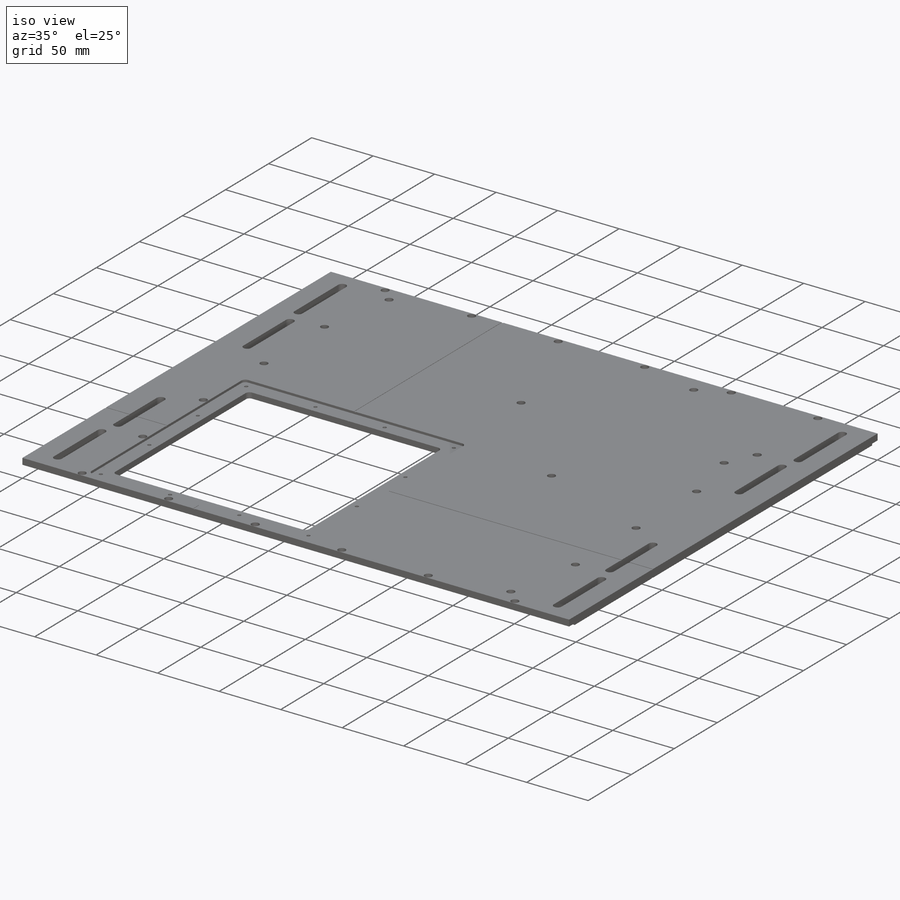
[diagram: iso view]
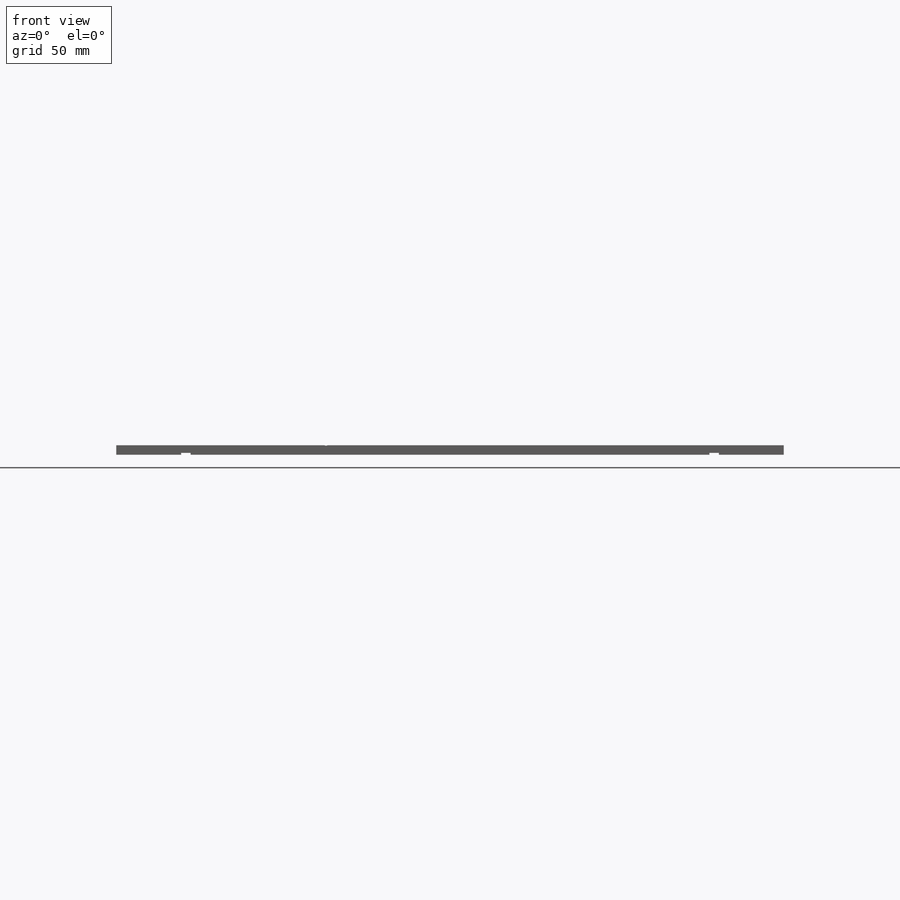
[diagram: front view]
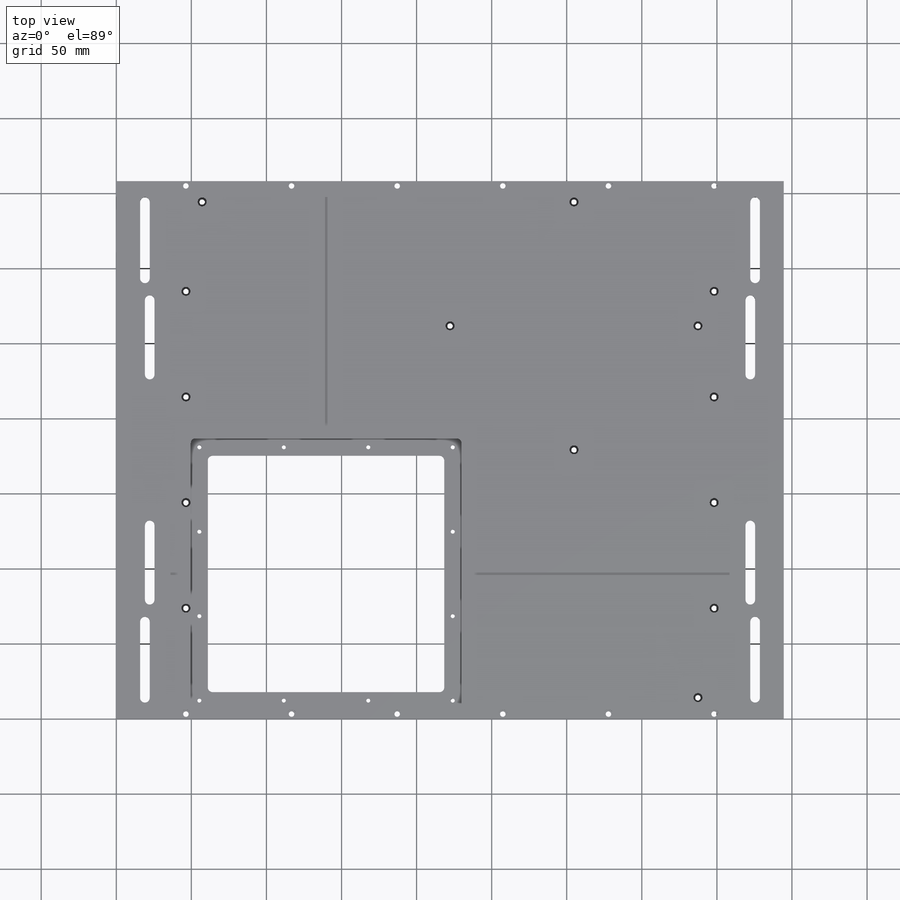
[diagram: top view]
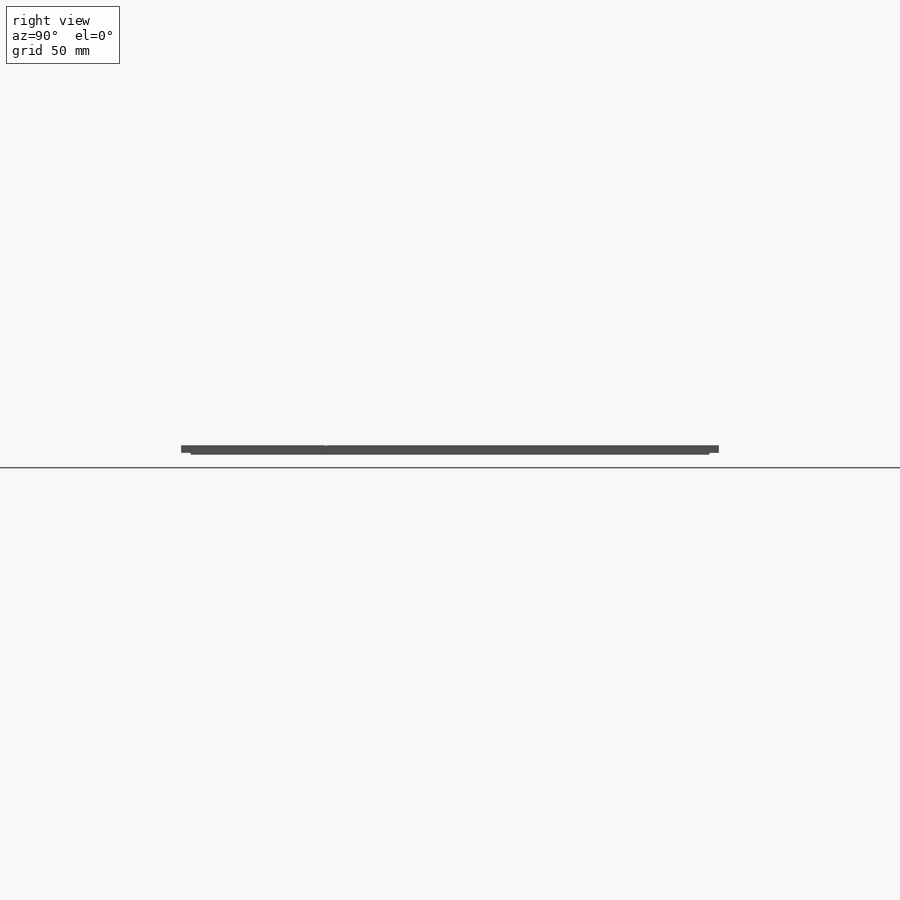
[diagram: right view]
SOLIDWORKS PART (.sldprt)
format: sldprt  version: not decoded by parser v0  size: 717,312 bytes
history: native  units: mm
features: sketch x13, cut_extrude x6, hole x3, material x1, extrude x1 (+13 scaffold rows collapsed)
feature tree (37):
  scaffold x13  (default folders/planes/origin — collapsed)
  material  "6061 Alloy"
  sketch  "Sketch1"  dims[D1=444.5mm D2=358.14mm]
  extrude  "Boss-Extrude1"  Depth=6.35mm
  sketch  "Sketch2"  dims[c1.D3=3.175mm c1.D1=157.48mm c1.D2=157.48mm c2.D3=17.78mm c2.D4=17.78mm c2.D5=~158.332014mm c3.D4=7.62mm c3.D5=7.62mm]
  cut_extrude  "Cut-Extrude1"  Depth=6.35mm
  sketch  "Sketch3"  dims[c1.D5=3.175mm c1.D1=180.34mm c1.D2=180.34mm c1.D3=11.43mm c1.D4=6.35mm c2.D5=157.48mm c2.D4=11.43mm]
  cut_extrude  "Cut-Extrude2"  Depth=1.8542mm
  hole  "CBORE for #6 Socket Head Cap Screw1"  Diameter=3.6576mm Depth=6.35mm
  sketch  "Sketch10"  dims[c1.D1=3.175mm c1.D2=3.175mm c1.D3=3.175mm c1.D4=3.175mm c2.D2=70.358mm c2.D4=70.358mm c2.D5=~231.837317mm c2.D3=35.179mm c3.D5=~506.486445mm c4.D5=45.0deg]
  sketch  "Sketch8"  dims[hole-wizard template sketch: 42 standard entries collapsed; hole parameters kept: c12.Thru Hole Depth=6.35mm c12.C'Bore Dia.=6.0mm c12.C'Bore Depth=3.5052mm]
  hole  "CBORE for #6 Socket Head Cap Screw2"  Diameter=3.6576mm Depth=6.35mm
  sketch  "Sketch15"  dims[D1=82.55mm D2=82.55mm D3=165.1mm D4=165.1mm D5=82.55mm D6=82.55mm D7=165.1mm D8=165.1mm D9=165.1mm D10=165.1mm]
  sketch  "Sketch16"  dims[hole-wizard template sketch: 42 standard entries collapsed; hole parameters kept: c12.Thru Hole Depth=6.35mm c12.C'Bore Dia.=6.0mm c12.C'Bore Depth=3.5052mm]
  hole  "Tap Drill for #6-32 Tap1"  Diameter=2.7051mm Depth=4.4948mm
  sketch  "Sketch17"  dims[c1.D1=5.6388mm c1.D2=~5.638749mm c1.D3=5.6388mm c1.D4=5.6388mm c1.D5=~56.252516mm c1.D6=~56.252516mm c2.D5=~56.252516mm c2.D6=~56.252567mm c2.D7=~56.252516mm c3.D6=~56.252516mm c3.D7=~56.252516mm c3.D8=~56.252516mm c3.D9=56.261mm c3.D10=56.261mm c3.D11=56.261mm c3.D12=56.261mm c3.D2=28.1305mm c3.D3=28.1305mm c3.D4=28.1305mm c3.D13=28.1305mm]
  sketch  "Sketch18"  dims[Hole Dia.=2.7051mm Hole Depth=4.4948mm Drill Angle=118.0deg]
  sketch  "Sketch21"  dims[c1.D1=358.14mm c1.D2=24.13mm c1.D3=24.13mm c1.D4=~6.235217mm c2.D2=179.07mm c2.D3=345.44mm c3.D2=179.07mm c3.D3=179.07mm c3.D4=6.35mm c3.D5=6.35mm c3.D1=6.35mm]
  cut_extrude  "Cut-Extrude3"  Depth=1.27mm
  sketch  "Sketch22"  dims[c1.D3=3.0mm c1.D7=3.175mm c1.D8=~2.38125mm c1.D1=203.2mm c1.D2=200.0mm c2.D3=25.019mm c2.D4=12.7mm c2.D5=25.019mm c3.D3=12.5095mm c3.D5=25.019mm c4.D3=12.5095mm c4.D4=50.8mm c5.D3=50.038mm c5.D5=139.7mm c5.D6=75.0mm c5.D7=~88.234778mm c6.D3=~53.321209mm c6.D7=~26.739337mm c7.D3=~65.19932mm c7.D7=~18.068628mm c8.D3=6.0452mm c8.D7=56.0578mm c8.D9=75.0mm c8.D10=200.0mm c8.D2=200.0mm c9.D3=49.657mm c9.D6=6.35mm c9.D7=75.0mm]
  cut_extrude  "Cut-Extrude4"  [1 undecoded]
  sketch  "Sketch24"  dims[D1=1.5875mm D2=1.5875mm]
  cut_extrude  "Cut-Extrude6"  Depth=0.254mm
  sketch  "Sketch25"  dims[D1=76.2mm]
  cut_extrude  "Cut-Extrude7"  Depth=0.254mm
decode coverage: 22 of 23 modeling features carry decoded parameters
note: ~ marks probable driven/reference dimensions
note: 1 parameter value undecoded
note: suppression state not decoded; provenance and decode notes live in map.json
